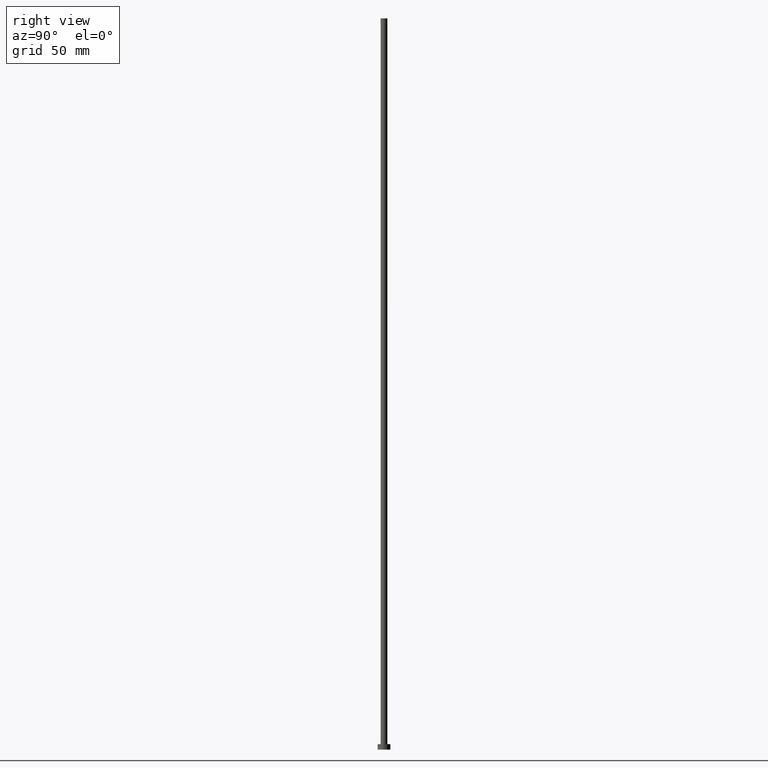
[diagram: clean part render]
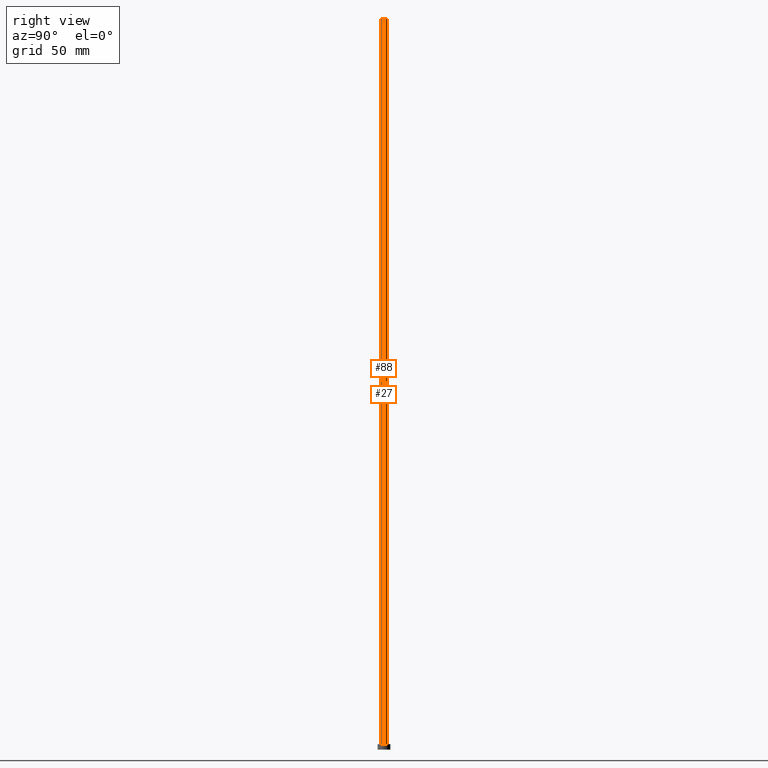
[diagram: same view with one multi-face feature highlighted, each face labeled with its STEP entity id]
A machine part, right view. The highlighted faces form ONE feature: a constant-radius fillet chain: 2 tangent blend faces with common blend radius 1.85 mm. The faces share edges in the B-rep.
Their STEP definitions:
[1] entity #27 (Cylinder):
#6 = EDGE_CURVE ( 'NONE', #110, #68, #36, .T. ) ;
#19 = DIRECTION ( 'NONE',  ( -0.000000000000000000, -0.000000000000000000, -1.000000000000000000 ) ) ;
#21 = DIRECTION ( 'NONE',  ( -0.000000000000000000, -0.000000000000000000, -1.000000000000000000 ) ) ;
#24 = CARTESIAN_POINT ( 'NONE',  ( 0.000000000000000000, 0.000000000000000000, 400.0000000000000000 ) ) ;
#26 = EDGE_CURVE ( 'NONE', #146, #68, #161, .T. ) ;
#27 = ADVANCED_FACE ( 'NONE', ( #44 ), #58, .T. ) ;
#29 = EDGE_LOOP ( 'NONE', ( #109, #235, #189, #93 ) ) ;
#33 = CIRCLE ( 'NONE', #108, 1.850000000000000089 ) ;
#36 = LINE ( 'NONE', #236, #186 ) ;
#44 = FACE_OUTER_BOUND ( 'NONE', #29, .T. ) ;
#58 = CYLINDRICAL_SURFACE ( 'NONE', #87, 1.850000000000000089 ) ;
#66 = CARTESIAN_POINT ( 'NONE',  ( -1.850000000000000089, 0.000000000000000000, 400.0000000000000000 ) ) ;
#67 = CARTESIAN_POINT ( 'NONE',  ( 1.850000000000000089, 2.265596578422603100E-16, 400.0000000000000000 ) ) ;
#68 = VERTEX_POINT ( 'NONE', #83 ) ;
#83 = CARTESIAN_POINT ( 'NONE',  ( -1.850000000000000089, 0.000000000000000000, 3.000000000000000000 ) ) ;
#87 = AXIS2_PLACEMENT_3D ( 'NONE', #164, #19, #122 ) ;
#90 = LINE ( 'NONE', #204, #141 ) ;
#93 = ORIENTED_EDGE ( 'NONE', *, *, #6, .F. ) ;
#106 = EDGE_CURVE ( 'NONE', #170, #110, #33, .T. ) ;
#108 = AXIS2_PLACEMENT_3D ( 'NONE', #24, #116, #157 ) ;
#109 = ORIENTED_EDGE ( 'NONE', *, *, #106, .F. ) ;
#110 = VERTEX_POINT ( 'NONE', #66 ) ;
#116 = DIRECTION ( 'NONE',  ( 0.000000000000000000, 0.000000000000000000, 1.000000000000000000 ) ) ;
#119 = EDGE_CURVE ( 'NONE', #170, #146, #90, .T. ) ;
#122 = DIRECTION ( 'NONE',  ( -1.000000000000000000, 0.000000000000000000, 0.000000000000000000 ) ) ;
#123 = DIRECTION ( 'NONE',  ( -0.000000000000000000, -0.000000000000000000, -1.000000000000000000 ) ) ;
#141 = VECTOR ( 'NONE', #21, 1000.000000000000000 ) ;
#146 = VERTEX_POINT ( 'NONE', #180 ) ;
#157 = DIRECTION ( 'NONE',  ( 1.000000000000000000, 0.000000000000000000, 0.000000000000000000 ) ) ;
#161 = CIRCLE ( 'NONE', #195, 1.850000000000000089 ) ;
#164 = CARTESIAN_POINT ( 'NONE',  ( 0.000000000000000000, 0.000000000000000000, 400.0000000000000000 ) ) ;
#170 = VERTEX_POINT ( 'NONE', #67 ) ;
#180 = CARTESIAN_POINT ( 'NONE',  ( 1.850000000000000089, 2.265596578422603100E-16, 3.000000000000000000 ) ) ;
#186 = VECTOR ( 'NONE', #123, 1000.000000000000000 ) ;
#189 = ORIENTED_EDGE ( 'NONE', *, *, #26, .T. ) ;
#195 = AXIS2_PLACEMENT_3D ( 'NONE', #222, #255, #207 ) ;
#204 = CARTESIAN_POINT ( 'NONE',  ( 1.850000000000000089, 2.265596578422603100E-16, 400.0000000000000000 ) ) ;
#207 = DIRECTION ( 'NONE',  ( 1.000000000000000000, 0.000000000000000000, 0.000000000000000000 ) ) ;
#222 = CARTESIAN_POINT ( 'NONE',  ( 0.000000000000000000, 0.000000000000000000, 3.000000000000000000 ) ) ;
#235 = ORIENTED_EDGE ( 'NONE', *, *, #119, .T. ) ;
#236 = CARTESIAN_POINT ( 'NONE',  ( -1.850000000000000089, 0.000000000000000000, 400.0000000000000000 ) ) ;
#255 = DIRECTION ( 'NONE',  ( 0.000000000000000000, 0.000000000000000000, 1.000000000000000000 ) ) ;
[2] entity #88 (Cylinder):
#6 = EDGE_CURVE ( 'NONE', #110, #68, #36, .T. ) ;
#7 = ORIENTED_EDGE ( 'NONE', *, *, #182, .F. ) ;
#21 = DIRECTION ( 'NONE',  ( -0.000000000000000000, -0.000000000000000000, -1.000000000000000000 ) ) ;
#25 = AXIS2_PLACEMENT_3D ( 'NONE', #163, #39, #239 ) ;
#31 = ORIENTED_EDGE ( 'NONE', *, *, #119, .F. ) ;
#36 = LINE ( 'NONE', #236, #186 ) ;
#39 = DIRECTION ( 'NONE',  ( 0.000000000000000000, 0.000000000000000000, 1.000000000000000000 ) ) ;
#45 = CARTESIAN_POINT ( 'NONE',  ( 0.000000000000000000, 0.000000000000000000, 400.0000000000000000 ) ) ;
#66 = CARTESIAN_POINT ( 'NONE',  ( -1.850000000000000089, 0.000000000000000000, 400.0000000000000000 ) ) ;
#67 = CARTESIAN_POINT ( 'NONE',  ( 1.850000000000000089, 2.265596578422603100E-16, 400.0000000000000000 ) ) ;
#68 = VERTEX_POINT ( 'NONE', #83 ) ;
#83 = CARTESIAN_POINT ( 'NONE',  ( -1.850000000000000089, 0.000000000000000000, 3.000000000000000000 ) ) ;
#88 = ADVANCED_FACE ( 'NONE', ( #91 ), #179, .T. ) ;
#89 = EDGE_CURVE ( 'NONE', #68, #146, #140, .T. ) ;
#90 = LINE ( 'NONE', #204, #141 ) ;
#91 = FACE_OUTER_BOUND ( 'NONE', #251, .T. ) ;
#110 = VERTEX_POINT ( 'NONE', #66 ) ;
#119 = EDGE_CURVE ( 'NONE', #170, #146, #90, .T. ) ;
#123 = DIRECTION ( 'NONE',  ( -0.000000000000000000, -0.000000000000000000, -1.000000000000000000 ) ) ;
#124 = ORIENTED_EDGE ( 'NONE', *, *, #89, .T. ) ;
#133 = CARTESIAN_POINT ( 'NONE',  ( 0.000000000000000000, 0.000000000000000000, 400.0000000000000000 ) ) ;
#140 = CIRCLE ( 'NONE', #25, 1.850000000000000089 ) ;
#141 = VECTOR ( 'NONE', #21, 1000.000000000000000 ) ;
#146 = VERTEX_POINT ( 'NONE', #180 ) ;
#147 = DIRECTION ( 'NONE',  ( 1.000000000000000000, 0.000000000000000000, 0.000000000000000000 ) ) ;
#163 = CARTESIAN_POINT ( 'NONE',  ( 0.000000000000000000, 0.000000000000000000, 3.000000000000000000 ) ) ;
#170 = VERTEX_POINT ( 'NONE', #67 ) ;
#174 = DIRECTION ( 'NONE',  ( -0.000000000000000000, -0.000000000000000000, -1.000000000000000000 ) ) ;
#179 = CYLINDRICAL_SURFACE ( 'NONE', #225, 1.850000000000000089 ) ;
#180 = CARTESIAN_POINT ( 'NONE',  ( 1.850000000000000089, 2.265596578422603100E-16, 3.000000000000000000 ) ) ;
#182 = EDGE_CURVE ( 'NONE', #110, #170, #228, .T. ) ;
#186 = VECTOR ( 'NONE', #123, 1000.000000000000000 ) ;
#204 = CARTESIAN_POINT ( 'NONE',  ( 1.850000000000000089, 2.265596578422603100E-16, 400.0000000000000000 ) ) ;
#206 = DIRECTION ( 'NONE',  ( -1.000000000000000000, 0.000000000000000000, 0.000000000000000000 ) ) ;
#217 = DIRECTION ( 'NONE',  ( 0.000000000000000000, 0.000000000000000000, 1.000000000000000000 ) ) ;
#224 = AXIS2_PLACEMENT_3D ( 'NONE', #133, #217, #147 ) ;
#225 = AXIS2_PLACEMENT_3D ( 'NONE', #45, #174, #206 ) ;
#228 = CIRCLE ( 'NONE', #224, 1.850000000000000089 ) ;
#236 = CARTESIAN_POINT ( 'NONE',  ( -1.850000000000000089, 0.000000000000000000, 400.0000000000000000 ) ) ;
#239 = DIRECTION ( 'NONE',  ( 1.000000000000000000, 0.000000000000000000, 0.000000000000000000 ) ) ;
#248 = ORIENTED_EDGE ( 'NONE', *, *, #6, .T. ) ;
#251 = EDGE_LOOP ( 'NONE', ( #31, #7, #248, #124 ) ) ;